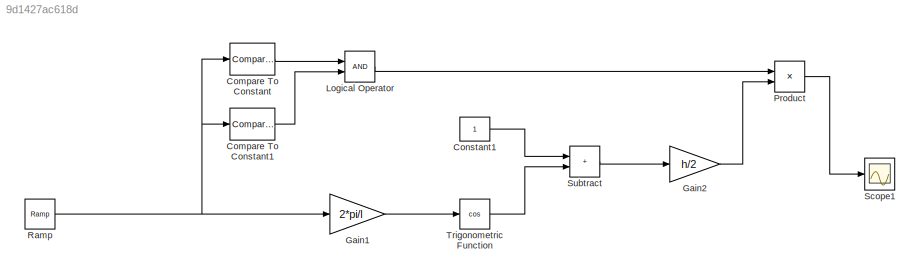
MODEL slx_9d1427ac618d
KIND model
CONFIG AbsTol = auto
CONFIG EnableMultiTasking = off
CONFIG FixedStep = 1e-5
CONFIG MaxStep = auto
CONFIG MinStep = auto
CONFIG RelTol = 1e-3
CONFIG SampleTimeConstraint = Unconstrained
CONFIG SolverName = ode4
CONFIG StartTime = 0.0
CONFIG StopTime = 10.0
WORKSPACE source: mxarray member
WORKSPACE h: Simulink.Parameter (value not decoded)
WORKSPACE l: Simulink.Parameter (value not decoded)
WORKSPACE v: Simulink.Parameter (value not decoded)
BLOCK [Reference] Compare To Constant  REF=simulink/Logic and Bit
Operations/Compare
To Constant
  SourceBlock = simulink/Logic and Bit\nOperations/Compare\nTo Constant
  SourceType = Compare To Constant
BLOCK [Reference] Compare To Constant1  REF=simulink/Logic and Bit
Operations/Compare
To Constant
  SourceBlock = simulink/Logic and Bit\nOperations/Compare\nTo Constant
  SourceType = Compare To Constant
BLOCK [Constant] Constant1
BLOCK [Gain] Gain1
  Gain = 2*pi/l
BLOCK [Gain] Gain2
  Gain = h/2
BLOCK [Logic] Logical Operator
  AllPortsSameDT = off
  OutDataTypeStr = boolean
BLOCK [Product] Product
BLOCK [Reference] Ramp  REF=simulink/Sources/Ramp
  SourceBlock = simulink/Sources/Ramp
  SourceType = Ramp
BLOCK [Scope] Scope1
  ActiveDisplayYMaximum = 0.030535046959349131
  ActiveDisplayYMinimum = -0.0028154391340886598
  DataLoggingVariableName = ScopeData1
  Floating = off
  GraphicalSettings = {"AxesScalingProperties":{"AlignXAxis":"Center","AlignYAxis":"Center","AutoScaleXAxisLimits":false,"AxesScaling":"Manual","AxesScalingNumUpdates":10,"ExpandOnly":true,"ScaleAxesLimitsAtStop":false,"XAxisDataRange":100,"YAxisDataRange":80},"DisplayProperties":{"ColorOrder":["auto","auto","auto","auto","auto","auto","auto","auto","auto","auto","auto","auto","auto","auto","auto","auto","auto","auto",...<+1983ch>
  MultipleDisplayCache = [{"MaxYLimMag":0.03375,"MaxYLimReal":0.030535046959349131,"MinYLimMag":0,"MinYLimReal":-0.0028154391340886598,"PlotAsMagnitudePhase":false,"ShowGrid":true,"ShowLegend":false,"Title":"%<SignalLabel>","YLabel":""}]
  NumInputPorts = 1
  ScopeFrameLocation = window
  WasSavedAsWebScope = on
  WindowPosition = [3279.000000,27.000000,559.000000,418.000000,]
BLOCK [Sum] Subtract
  IconShape = rectangular
BLOCK [Trigonometry] Trigonometric Function
  Operator = cos
LINE Compare To Constant1:1 -> Logical Operator:2
LINE Compare To Constant:1 -> Logical Operator:1
LINE Constant1:1 -> Subtract:1
LINE Gain1:1 -> Trigonometric Function:1
LINE Gain2:1 -> Product:2
LINE Logical Operator:1 -> Product:1
LINE Product:1 -> Scope1:1
NET Ramp:1 -> Compare To Constant1:1, Compare To Constant:1, Gain1:1
LINE Subtract:1 -> Gain2:1
LINE Trigonometric Function:1 -> Subtract:2
note: NET lines group one-source signal fan-out (src -> all destinations, sorted); 1:1 wires keep LINE
